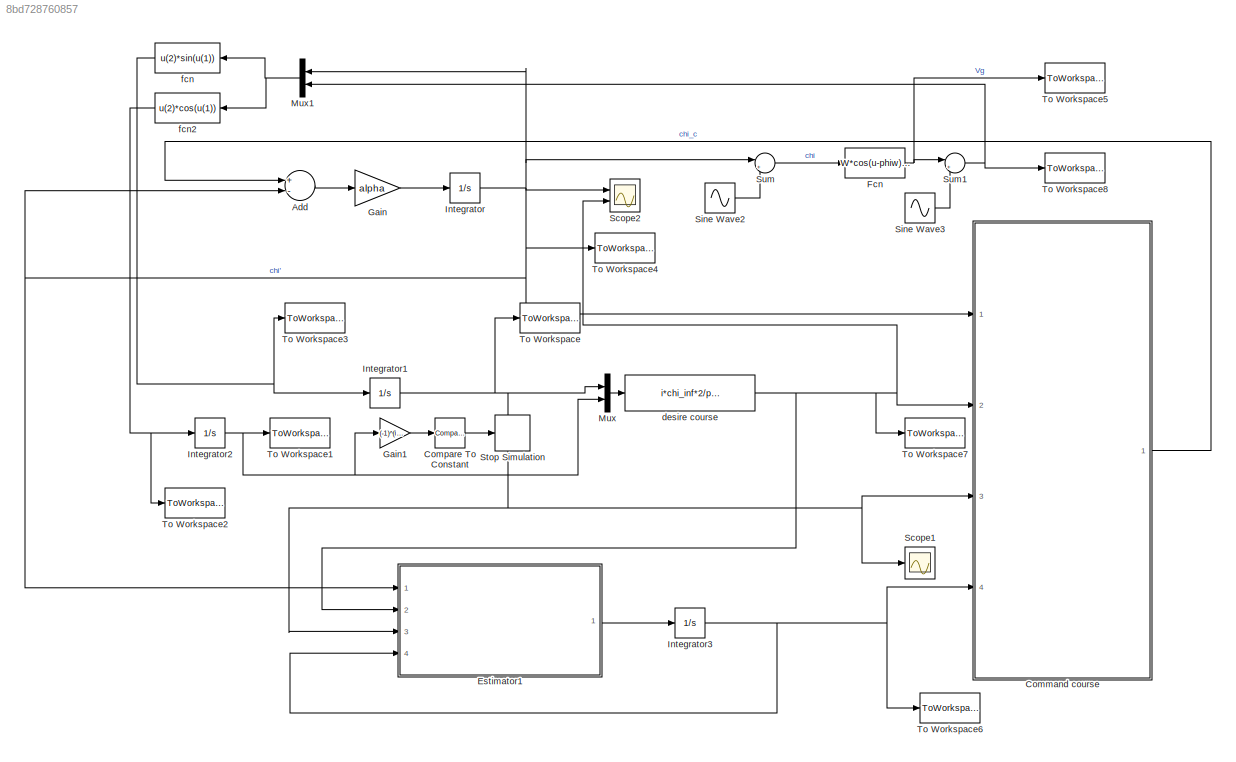
MODEL slx_8bd728760857
KIND model
CONFIG AbsTol = auto
CONFIG FixedStep = 0.001
CONFIG MaxStep = auto
CONFIG MinStep = auto
CONFIG RelTol = 1e-7
CONFIG SampleTimeConstraint = Unconstrained
CONFIG Solver = FixedStepAuto
CONFIG SolverMode = Auto
CONFIG SolverName = FixedStepAuto
CONFIG StartTime = 0.0
CONFIG StopTime = 1000
BLOCK [Sum] Add
  InputSameDT = off
  Inputs = +-
  OutDataTypeStr = Inherit: Inherit via internal rule
  Ports = [2, 1]
  SaturateOnIntegerOverflow = off
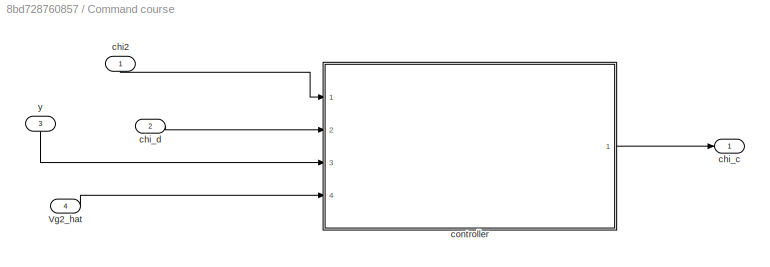
BLOCK [SubSystem] Command course
  Ports = [4, 1]
  RequestExecContextInheritance = off
  Variant = off
BLOCK [Inport] Command course/Vg2_hat
  IconDisplay = Port number
  Port = 4
BLOCK [Inport] Command course/chi2
  IconDisplay = Port number
BLOCK [Outport] Command course/chi_c
  IconDisplay = Port number
BLOCK [Inport] Command course/chi_d
  IconDisplay = Port number
  Port = 2
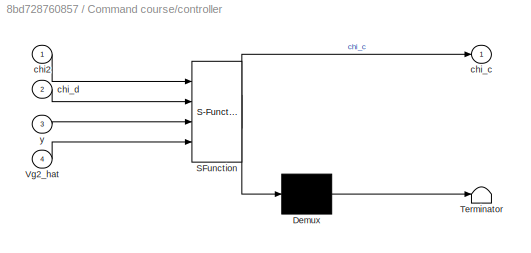
BLOCK [SubSystem] Command course/controller
  ErrorFcn = Stateflow.Translate.translate
  PermitHierarchicalResolution = ExplicitOnly
  Ports = [4, 1]
  RequestExecContextInheritance = off
  SFBlockType = MATLAB Function
  TreatAsAtomicUnit = on
  Variant = off
BLOCK [Demux] Command course/controller/ Demux 
  Outputs = 1
  Ports = [1, 1]
BLOCK [S-Function] Command course/controller/ SFunction 
  EnableBusSupport = on
  FunctionName = sf_sfun
  Parameters = alpha,chi_inf,epsi,k,kk
  PortCounts = [4 2]
  Ports = [4, 2]
  SFunctionDeploymentMode = off
  Tag = Stateflow S-Function RevisedStraightLine2 2
BLOCK [Terminator] Command course/controller/ Terminator 
BLOCK [Inport] Command course/controller/Vg2_hat
  IconDisplay = Port number
  Port = 4
BLOCK [Inport] Command course/controller/chi2
  IconDisplay = Port number
BLOCK [Outport] Command course/controller/chi_c
  IconDisplay = Port number
BLOCK [Inport] Command course/controller/chi_d
  IconDisplay = Port number
  Port = 2
BLOCK [Inport] Command course/controller/y
  IconDisplay = Port number
  Port = 3
BLOCK [Inport] Command course/y
  IconDisplay = Port number
  Port = 3
BLOCK [Reference] Compare To Constant  REF=simulink/Logic and Bit
Operations/Compare
To Constant
  Ports = [1, 1]
  SourceBlock = simulink/Logic and Bit\nOperations/Compare\nTo Constant
  SourceType = Compare To Constant
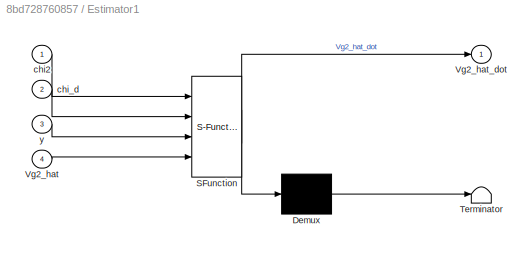
BLOCK [SubSystem] Estimator1
  ErrorFcn = Stateflow.Translate.translate
  PermitHierarchicalResolution = ExplicitOnly
  Ports = [4, 1]
  RequestExecContextInheritance = off
  SFBlockType = MATLAB Function
  TreatAsAtomicUnit = on
  Variant = off
BLOCK [Demux] Estimator1/ Demux 
  Outputs = 1
  Ports = [1, 1]
BLOCK [S-Function] Estimator1/ SFunction 
  EnableBusSupport = on
  FunctionName = sf_sfun
  Parameters = Va,W,chi_inf,epsi,k,kk,phiw,y_int
  PortCounts = [4 2]
  Ports = [4, 2]
  SFunctionDeploymentMode = off
  Tag = Stateflow S-Function RevisedStraightLine2 5
BLOCK [Terminator] Estimator1/ Terminator 
BLOCK [Inport] Estimator1/Vg2_hat
  IconDisplay = Port number
  Port = 4
BLOCK [Outport] Estimator1/Vg2_hat_dot
  IconDisplay = Port number
BLOCK [Inport] Estimator1/chi2
  IconDisplay = Port number
BLOCK [Inport] Estimator1/chi_d
  IconDisplay = Port number
  Port = 2
BLOCK [Inport] Estimator1/y
  IconDisplay = Port number
  Port = 3
BLOCK [Fcn] Fcn
  Expr = W*cos(u-phiw)+(Va^2-W^2*(sin(u-phiw))^2)^0.5
BLOCK [Gain] Gain
  Gain = alpha
  OutDataTypeStr = Inherit: Inherit via internal rule
  ParamDataTypeStr = Inherit: Inherit via internal rule
  SaturateOnIntegerOverflow = off
BLOCK [Gain] Gain1
  Gain = (-1)^(i+1)
  OutDataTypeStr = Inherit: Inherit via internal rule
  ParamDataTypeStr = Inherit: Inherit via internal rule
  SaturateOnIntegerOverflow = off
BLOCK [Integrator] Integrator
  InitialCondition = course_int
  Ports = [1, 1]
BLOCK [Integrator] Integrator1
  InitialCondition = y_int
  Ports = [1, 1]
BLOCK [Integrator] Integrator2
  InitialCondition = x_int
  Ports = [1, 1]
BLOCK [Integrator] Integrator3
  InitialCondition = 12.1
  Ports = [1, 1]
BLOCK [Mux] Mux
  DisplayOption = bar
  Inputs = 2
  Ports = [2, 1]
BLOCK [Mux] Mux1
  DisplayOption = bar
  Inputs = 2
  Ports = [2, 1]
BLOCK [Scope] Scope1
  Ports = [1]
  ScopeSpecificationString = Simulink.scopes.TimeScopeBlockCfg('CurrentConfiguration', extmgr.ConfigurationSet(extmgr.Configuration('Core','General UI',true),extmgr.Configuration('Core','Source UI',true),extmgr.Configuration('Sources','WiredSimulink',true,'DataLoggingVariableName','ScopeData1','DataLoggingSaveFormat','Array','DataLoggingDecimation','1'),extmgr.Configuration('Visuals','Time Domain',true,'SerializedDisplays',{s...<+1808ch>
BLOCK [Scope] Scope2
  NumInputPorts = 2
  Ports = [2]
  ScopeSpecificationString = Simulink.scopes.TimeScopeBlockCfg('CurrentConfiguration', extmgr.ConfigurationSet(extmgr.Configuration('Core','General UI',true),extmgr.Configuration('Core','Source UI',true),extmgr.Configuration('Sources','WiredSimulink',true,'DataLoggingVariableName','ScopeData2'),extmgr.Configuration('Visuals','Time Domain',true,'SerializedDisplays',{struct('MinYLimReal','-1.85848','MaxYLimReal','1.07916','YLab...<+1453ch>
BLOCK [Sin] Sine Wave2
  Amplitude = 0.2
  Frequency = 0.5
  Ports = [0, 1]
  SampleTime = 0
BLOCK [Sin] Sine Wave3
  Frequency = 0.5
  Ports = [0, 1]
  SampleTime = 0
BLOCK [Stop] Stop Simulation
BLOCK [Sum] Sum
  IconShape = round
  InputSameDT = off
  Inputs = |++
  OutDataTypeStr = Inherit: Inherit via internal rule
  Ports = [2, 1]
  SaturateOnIntegerOverflow = off
BLOCK [Sum] Sum1
  IconShape = round
  InputSameDT = off
  Inputs = |++
  OutDataTypeStr = Inherit: Inherit via internal rule
  Ports = [2, 1]
  SaturateOnIntegerOverflow = off
BLOCK [ToWorkspace] To Workspace
  FixptAsFi = on
  MaxDataPoints = inf
  Ports = [1]
  SampleTime = -1
  Save2DSignal = 3-D array (concatenate along third dimension)
  SaveFormat = Timeseries
  VariableName = y
BLOCK [ToWorkspace] To Workspace1
  FixptAsFi = on
  MaxDataPoints = inf
  Ports = [1]
  SampleTime = -1
  Save2DSignal = 3-D array (concatenate along third dimension)
  SaveFormat = Timeseries
  VariableName = x
BLOCK [ToWorkspace] To Workspace2
  FixptAsFi = on
  MaxDataPoints = inf
  Ports = [1]
  SampleTime = -1
  Save2DSignal = 3-D array (concatenate along third dimension)
  SaveFormat = Timeseries
  VariableName = vx
BLOCK [ToWorkspace] To Workspace3
  FixptAsFi = on
  MaxDataPoints = inf
  Ports = [1]
  SampleTime = -1
  Save2DSignal = 3-D array (concatenate along third dimension)
  SaveFormat = Timeseries
  VariableName = vy
BLOCK [ToWorkspace] To Workspace4
  FixptAsFi = on
  MaxDataPoints = inf
  Ports = [1]
  SampleTime = -1
  Save2DSignal = 3-D array (concatenate along third dimension)
  SaveFormat = Timeseries
  VariableName = course
BLOCK [ToWorkspace] To Workspace5
  FixptAsFi = on
  MaxDataPoints = inf
  Ports = [1]
  SampleTime = -1
  Save2DSignal = 3-D array (concatenate along third dimension)
  SaveFormat = Timeseries
  VariableName = Vg
BLOCK [ToWorkspace] To Workspace6
  FixptAsFi = on
  MaxDataPoints = inf
  Ports = [1]
  SampleTime = -1
  Save2DSignal = 3-D array (concatenate along third dimension)
  SaveFormat = Timeseries
  VariableName = Vg2hat
BLOCK [ToWorkspace] To Workspace7
  FixptAsFi = on
  MaxDataPoints = inf
  Ports = [1]
  SampleTime = -1
  Save2DSignal = 3-D array (concatenate along third dimension)
  SaveFormat = Timeseries
  VariableName = chi_d
BLOCK [ToWorkspace] To Workspace8
  FixptAsFi = on
  MaxDataPoints = inf
  Ports = [1]
  SampleTime = -1
  Save2DSignal = 3-D array (concatenate along third dimension)
  SaveFormat = Timeseries
  VariableName = Vg2
BLOCK [Fcn] desire course
  Expr = i*chi_inf*2/pi*atan(k*(u(1)-aa*u(2)-bb))+ang
BLOCK [Fcn] fcn
  Expr = u(2)*sin(u(1))
BLOCK [Fcn] fcn2
  Expr = u(2)*cos(u(1))
LINE Add:1 -> Gain:1
LINE Command course/Vg2_hat:1 -> Command course/controller:4
LINE Command course/chi2:1 -> Command course/controller:1
LINE Command course/chi_d:1 -> Command course/controller:2
LINE Command course/controller:1 -> Command course/chi_c:1
LINE Command course/y:1 -> Command course/controller:3
LINE Command course:1 -> Add:1
LINE Compare To Constant:1 -> Stop Simulation:1
LINE Estimator1:1 -> Integrator3:1
NET Fcn:1 -> Sum1:1, To Workspace5:1
LINE Gain1:1 -> Compare To Constant:1
LINE Gain:1 -> Integrator:1
NET Integrator1:1 -> Command course:3, Estimator1:3, Mux:1, Scope1:1, To Workspace:1
NET Integrator2:1 -> Gain1:1, Mux:2, To Workspace1:1
NET Integrator3:1 -> Command course:4, Estimator1:4, To Workspace6:1
NET Integrator:1 -> Add:2, Command course:1, Estimator1:1, Mux1:1, Scope2:1, Sum:1, To Workspace4:1
NET Mux1:1 -> fcn2:1, fcn:1
LINE Mux:1 -> desire course:1
LINE Sine Wave2:1 -> Sum:2
LINE Sine Wave3:1 -> Sum1:2
NET Sum1:1 -> Mux1:2, To Workspace8:1
LINE Sum:1 -> Fcn:1
NET desire course:1 -> Command course:2, Estimator1:2, Scope2:2, To Workspace7:1
NET fcn2:1 -> Integrator2:1, To Workspace2:1
NET fcn:1 -> Integrator1:1, To Workspace3:1
note: NET lines group one-source signal fan-out (src -> all destinations, sorted); 1:1 wires keep LINE
CHART Command course/controller states=1 transitions=1
  STATE_LABEL 'eML_blk_kernel()'
  STATE_LABEL 'SCRIPT:\nfunction chi_c = CommandCourse(chi2,chi_d,y,Vg2_hat,epsi,chi_inf,k,kk,alpha)\n%generate command course angle chi_c\nterm =(chi2-chi_d)/epsi;\nif abs(term)<=1\n    sat=term;\nelse\n    sat=sign(term);\nend\n\nchi_c=chi2-chi_inf*2/pi/alpha*k/(1+(k*y)^2)*Vg2_hat*sin(chi2)-kk/alpha*sat;\n\n\nend'
CHART Estimator1 states=1 transitions=1
  STATE_LABEL 'eML_blk_kernel()'
  STATE_LABEL "SCRIPT:\nfunction Vg2_hat_dot = estimator(chi2,chi_d,y,Vg2_hat,y_int,W,Va,epsi,phiw,chi_inf,k,kk)\n%estimator of Vg'\nGamma = 0.5;\nrho = y_int^2/pi^2; %positive scale factor used to weight the terms so that y and chi are similar in magnitude\n\ndiff_chi = chi2-chi_d; % error of course angle\n\nterm =diff_chi/epsi;\nif abs(term)<=1\n    sat=term;\nelse\n    sat=sign(term);\nend\n% derivative of Vg' over x'\nder ...<+263ch>"
